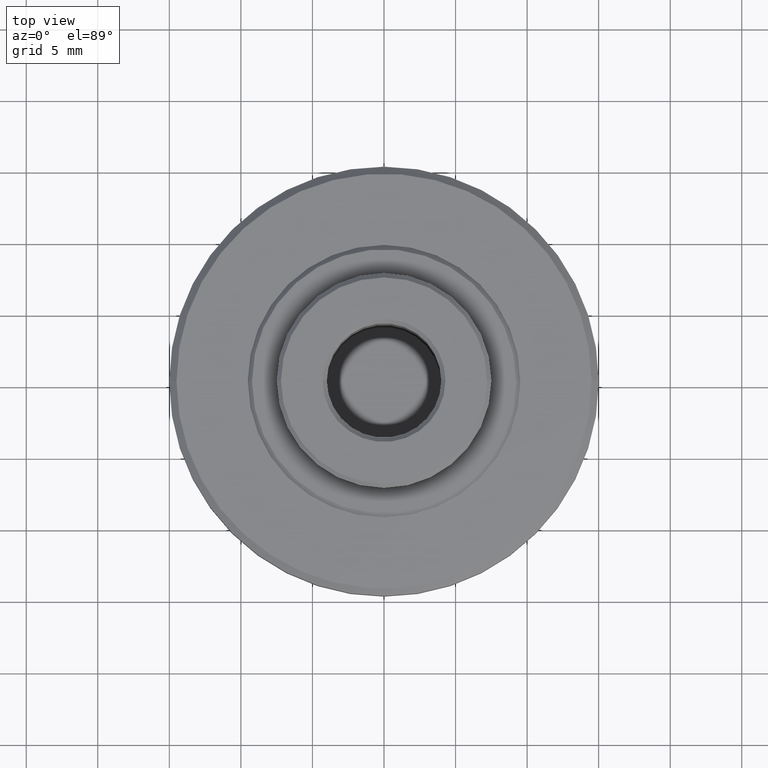
[diagram: clean part render]
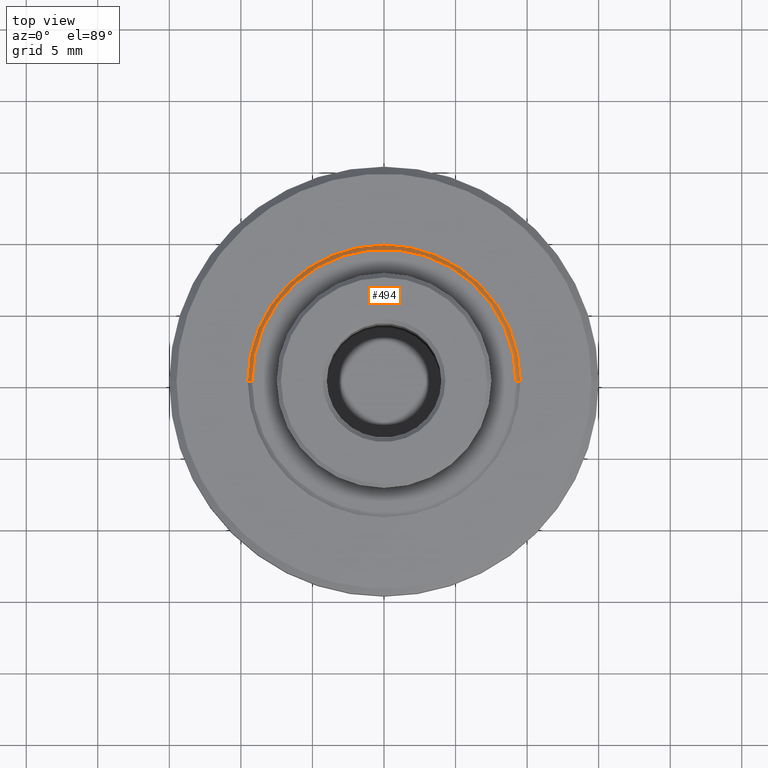
[diagram: same view with one face highlighted and labeled with its STEP entity id]
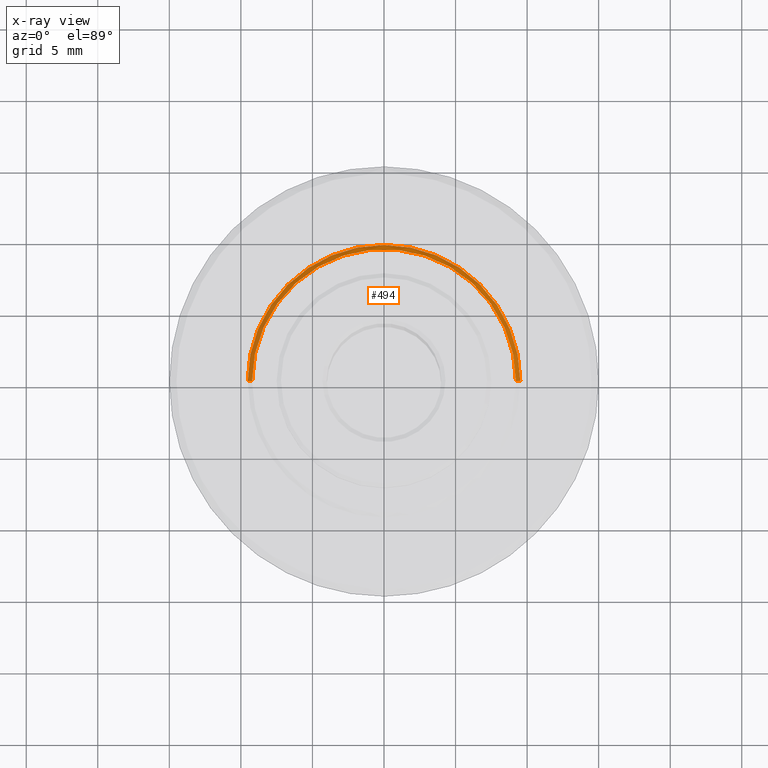
[diagram: x-ray of the same camera — body ghosted, the highlighted face saturated]
A machine part, top view. The second image highlights one B-rep face of the part: STEP entity #494.
The next image is the same camera in x-ray: the body ghosted, the highlighted face saturated — about 0% of this face is hidden behind the body in this view.
In plain terms, the highlighted conical surface has half-angle 45 deg.
Its self-contained STEP definition (entity closure, byte-faithful):
#61 = DIRECTION ( 'NONE',  ( -0.0000000000000000000, -0.0000000000000000000, 1.000000000000000000 ) ) ;
#86 = DIRECTION ( 'NONE',  ( 0.0000000000000000000, 0.0000000000000000000, -1.000000000000000000 ) ) ;
#99 = VERTEX_POINT ( 'NONE', #298 ) ;
#110 = DIRECTION ( 'NONE',  ( -0.7071067811865474600, 0.0000000000000000000, -0.7071067811865475700 ) ) ;
#222 = CARTESIAN_POINT ( 'NONE',  ( 9.519999999999999600, 1.165863752788280200E-015, 12.45000000000000100 ) ) ;
#298 = CARTESIAN_POINT ( 'NONE',  ( 9.219999999999961600, 1.147494050801067600E-015, 12.75000000000003900 ) ) ;
#301 = VERTEX_POINT ( 'NONE', #2043 ) ;
#367 = DIRECTION ( 'NONE',  ( 0.7071067811865474600, 8.659560562354931600E-017, -0.7071067811865475700 ) ) ;
#380 = CARTESIAN_POINT ( 'NONE',  ( 0.0000000000000000000, 0.0000000000000000000, 12.75000000000003900 ) ) ;
#405 = CARTESIAN_POINT ( 'NONE',  ( 0.0000000000000000000, 0.0000000000000000000, 12.45000000000000100 ) ) ;
#475 = AXIS2_PLACEMENT_3D ( 'NONE', #405, #86, #1269 ) ;
#494 = ADVANCED_FACE ( 'NONE', ( #1619 ), #1114, .T. ) ;
#497 = DIRECTION ( 'NONE',  ( -1.000000000000000000, 0.0000000000000000000, 0.0000000000000000000 ) ) ;
#528 = DIRECTION ( 'NONE',  ( 0.0000000000000000000, 0.0000000000000000000, -1.000000000000000000 ) ) ;
#587 = CARTESIAN_POINT ( 'NONE',  ( -9.219999999999998900, 0.0000000000000000000, 12.75000000000000200 ) ) ;
#599 = ORIENTED_EDGE ( 'NONE', *, *, #1448, .F. ) ;
#636 = ORIENTED_EDGE ( 'NONE', *, *, #1914, .F. ) ;
#672 = ORIENTED_EDGE ( 'NONE', *, *, #996, .T. ) ;
#762 = AXIS2_PLACEMENT_3D ( 'NONE', #1525, #528, #497 ) ;
#773 = LINE ( 'NONE', #587, #1475 ) ;
#826 = EDGE_CURVE ( 'NONE', #99, #301, #1590, .T. ) ;
#963 = EDGE_LOOP ( 'NONE', ( #1182, #672, #599, #636 ) ) ;
#996 = EDGE_CURVE ( 'NONE', #99, #2053, #1949, .T. ) ;
#1076 = DIRECTION ( 'NONE',  ( -1.000000000000000000, 0.0000000000000000000, 0.0000000000000000000 ) ) ;
#1114 = CONICAL_SURFACE ( 'NONE', #762, 9.219999999999998900, 0.7853981633974482800 ) ;
#1182 = ORIENTED_EDGE ( 'NONE', *, *, #826, .F. ) ;
#1184 = CARTESIAN_POINT ( 'NONE',  ( -9.519999999999999600, 0.0000000000000000000, 12.45000000000000100 ) ) ;
#1269 = DIRECTION ( 'NONE',  ( -1.000000000000000000, 0.0000000000000000000, 0.0000000000000000000 ) ) ;
#1295 = CIRCLE ( 'NONE', #475, 9.519999999999999600 ) ;
#1448 = EDGE_CURVE ( 'NONE', #1798, #2053, #1295, .T. ) ;
#1475 = VECTOR ( 'NONE', #110, 1000.000000000000000 ) ;
#1489 = VECTOR ( 'NONE', #367, 1000.000000000000000 ) ;
#1525 = CARTESIAN_POINT ( 'NONE',  ( 0.0000000000000000000, 0.0000000000000000000, 12.75000000000000200 ) ) ;
#1590 = CIRCLE ( 'NONE', #1649, 9.219999999999961600 ) ;
#1619 = FACE_OUTER_BOUND ( 'NONE', #963, .T. ) ;
#1649 = AXIS2_PLACEMENT_3D ( 'NONE', #380, #61, #1076 ) ;
#1798 = VERTEX_POINT ( 'NONE', #1184 ) ;
#1914 = EDGE_CURVE ( 'NONE', #301, #1798, #773, .T. ) ;
#1949 = LINE ( 'NONE', #2120, #1489 ) ;
#2043 = CARTESIAN_POINT ( 'NONE',  ( -9.219999999999961600, 0.0000000000000000000, 12.75000000000003900 ) ) ;
#2053 = VERTEX_POINT ( 'NONE', #222 ) ;
#2120 = CARTESIAN_POINT ( 'NONE',  ( 9.219999999999998900, 1.129124348813859600E-015, 12.75000000000000200 ) ) ;